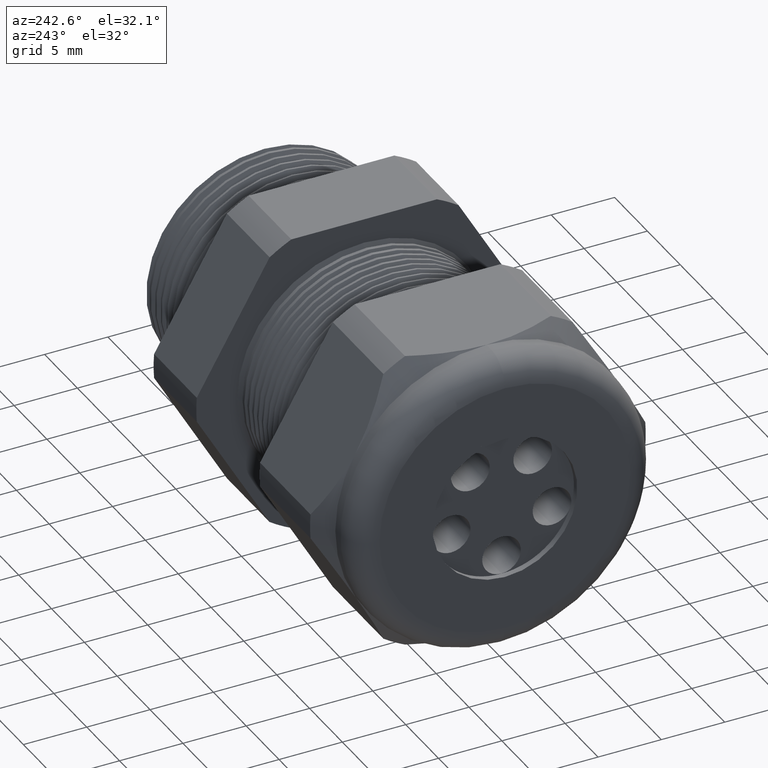
[diagram: clean part render]
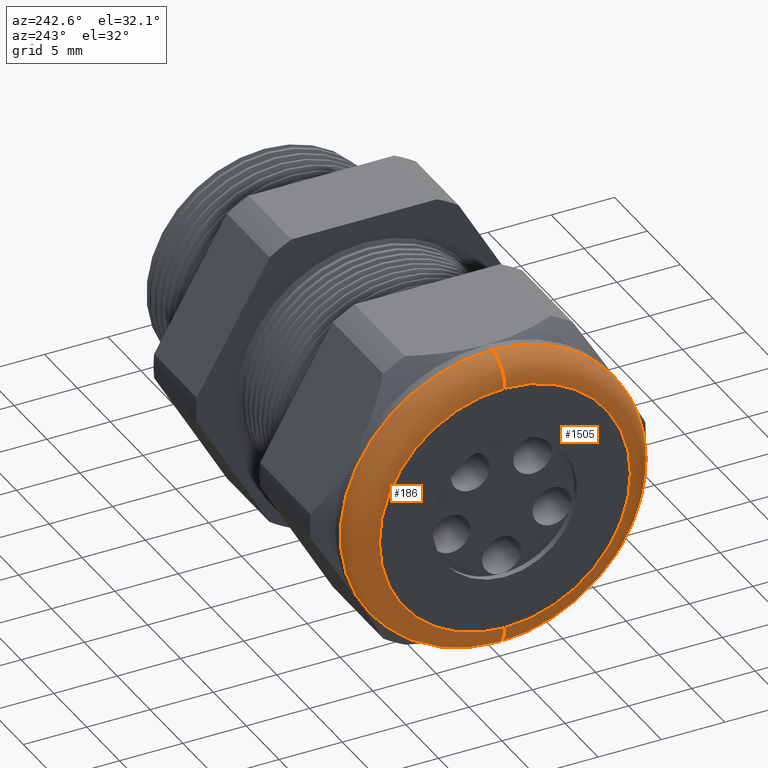
[diagram: same view with one multi-face feature highlighted, each face labeled with its STEP entity id]
A machine part, auxiliary view. The highlighted faces form ONE feature: a constant-radius fillet chain: 2 tangent blend faces with common blend radius 2.032 mm. The faces share edges in the B-rep.
Their STEP definitions:
[1] entity #186 (Torus):
#174 = EDGE_CURVE ( 'NONE', #180, #213, #2170, .T. ) ;
#176 = ORIENTED_EDGE ( 'NONE', *, *, #174, .T. ) ;
#177 = VERTEX_POINT ( 'NONE', #2226 ) ;
#180 = VERTEX_POINT ( 'NONE', #2221 ) ;
#184 = EDGE_CURVE ( 'NONE', #180, #177, #2216, .T. ) ;
#186 = ADVANCED_FACE ( 'NONE', ( #2207 ), #2206, .T. ) ;
#187 = ORIENTED_EDGE ( 'NONE', *, *, #184, .F. ) ;
#188 = EDGE_LOOP ( 'NONE', ( #187, #176, #214, #216 ) ) ;
#213 = VERTEX_POINT ( 'NONE', #2237 ) ;
#214 = ORIENTED_EDGE ( 'NONE', *, *, #219, .F. ) ;
#216 = ORIENTED_EDGE ( 'NONE', *, *, #220, .F. ) ;
#218 = VERTEX_POINT ( 'NONE', #2296 ) ;
#219 = EDGE_CURVE ( 'NONE', #218, #213, #2295, .T. ) ;
#220 = EDGE_CURVE ( 'NONE', #177, #218, #2290, .T. ) ;
#2170 = CIRCLE ( 'NONE', #2236, 0.07999999999999996000 ) ;
#2203 = DIRECTION ( 'NONE',  ( -1.000000000000000000, 0.0000000000000000000, 0.0000000000000000000 ) ) ;
#2204 = CARTESIAN_POINT ( 'NONE',  ( -1.330000000000000100, 0.0000000000000000000, 0.0000000000000000000 ) ) ;
#2205 = AXIS2_PLACEMENT_3D ( 'NONE', #2204, #2203, #2269 ) ;
#2206 = TOROIDAL_SURFACE ( 'NONE', #2205, 0.3899999999999999600, 0.08000000000000000200 ) ;
#2207 = FACE_OUTER_BOUND ( 'NONE', #188, .T. ) ;
#2212 = DIRECTION ( 'NONE',  ( 0.0000000000000000000, 0.0000000000000000000, 1.000000000000000000 ) ) ;
#2213 = DIRECTION ( 'NONE',  ( 1.000000000000000000, 0.0000000000000000000, 0.0000000000000000000 ) ) ;
#2214 = CARTESIAN_POINT ( 'NONE',  ( -1.330000000000000100, 0.0000000000000000000, 0.0000000000000000000 ) ) ;
#2215 = AXIS2_PLACEMENT_3D ( 'NONE', #2214, #2213, #2212 ) ;
#2216 = CIRCLE ( 'NONE', #2215, 0.4699999999999999200 ) ;
#2221 = CARTESIAN_POINT ( 'NONE',  ( -1.330000000000000100, 0.0000000000000000000, -0.4699999999999999200 ) ) ;
#2226 = CARTESIAN_POINT ( 'NONE',  ( -1.330000000000000100, 5.755839955992558400E-017, 0.4699999999999999200 ) ) ;
#2233 = DIRECTION ( 'NONE',  ( 0.0000000000000000000, -1.224646799147353900E-016, 1.000000000000000000 ) ) ;
#2234 = DIRECTION ( 'NONE',  ( 0.0000000000000000000, 1.000000000000000000, 1.224646799147353200E-016 ) ) ;
#2235 = CARTESIAN_POINT ( 'NONE',  ( -1.330000000000000100, 4.776122516674676800E-017, -0.3899999999999999600 ) ) ;
#2236 = AXIS2_PLACEMENT_3D ( 'NONE', #2235, #2234, #2233 ) ;
#2237 = CARTESIAN_POINT ( 'NONE',  ( -1.409999999999999900, 5.265981236333617600E-017, -0.3899999999999999600 ) ) ;
#2269 = DIRECTION ( 'NONE',  ( 0.0000000000000000000, 0.0000000000000000000, 1.000000000000000000 ) ) ;
#2286 = DIRECTION ( 'NONE',  ( 0.0000000000000000000, 0.0000000000000000000, -1.000000000000000000 ) ) ;
#2287 = DIRECTION ( 'NONE',  ( 0.0000000000000000000, -1.000000000000000000, 0.0000000000000000000 ) ) ;
#2288 = CARTESIAN_POINT ( 'NONE',  ( -1.330000000000000100, 0.0000000000000000000, 0.3899999999999999600 ) ) ;
#2289 = AXIS2_PLACEMENT_3D ( 'NONE', #2288, #2287, #2286 ) ;
#2290 = CIRCLE ( 'NONE', #2289, 0.07999999999999996000 ) ;
#2291 = DIRECTION ( 'NONE',  ( 0.0000000000000000000, 0.0000000000000000000, 1.000000000000000000 ) ) ;
#2292 = DIRECTION ( 'NONE',  ( -1.000000000000000000, 0.0000000000000000000, 0.0000000000000000000 ) ) ;
#2293 = CARTESIAN_POINT ( 'NONE',  ( -1.409999999999999900, 0.0000000000000000000, 0.0000000000000000000 ) ) ;
#2294 = AXIS2_PLACEMENT_3D ( 'NONE', #2293, #2292, #2291 ) ;
#2295 = CIRCLE ( 'NONE', #2294, 0.3899999999999999600 ) ;
#2296 = CARTESIAN_POINT ( 'NONE',  ( -1.409999999999999900, 0.0000000000000000000, 0.3899999999999999600 ) ) ;
[2] entity #1505 (Torus):
#174 = EDGE_CURVE ( 'NONE', #180, #213, #2170, .T. ) ;
#177 = VERTEX_POINT ( 'NONE', #2226 ) ;
#180 = VERTEX_POINT ( 'NONE', #2221 ) ;
#213 = VERTEX_POINT ( 'NONE', #2237 ) ;
#218 = VERTEX_POINT ( 'NONE', #2296 ) ;
#220 = EDGE_CURVE ( 'NONE', #177, #218, #2290, .T. ) ;
#1348 = EDGE_CURVE ( 'NONE', #213, #218, #4535, .T. ) ;
#1408 = EDGE_CURVE ( 'NONE', #177, #180, #4572, .T. ) ;
#1505 = ADVANCED_FACE ( 'NONE', ( #4770 ), #4769, .T. ) ;
#1506 = EDGE_LOOP ( 'NONE', ( #1563, #1564, #1565, #1566 ) ) ;
#1563 = ORIENTED_EDGE ( 'NONE', *, *, #174, .F. ) ;
#1564 = ORIENTED_EDGE ( 'NONE', *, *, #1408, .F. ) ;
#1565 = ORIENTED_EDGE ( 'NONE', *, *, #220, .T. ) ;
#1566 = ORIENTED_EDGE ( 'NONE', *, *, #1348, .F. ) ;
#2170 = CIRCLE ( 'NONE', #2236, 0.07999999999999996000 ) ;
#2221 = CARTESIAN_POINT ( 'NONE',  ( -1.330000000000000100, 0.0000000000000000000, -0.4699999999999999200 ) ) ;
#2226 = CARTESIAN_POINT ( 'NONE',  ( -1.330000000000000100, 5.755839955992558400E-017, 0.4699999999999999200 ) ) ;
#2233 = DIRECTION ( 'NONE',  ( 0.0000000000000000000, -1.224646799147353900E-016, 1.000000000000000000 ) ) ;
#2234 = DIRECTION ( 'NONE',  ( 0.0000000000000000000, 1.000000000000000000, 1.224646799147353200E-016 ) ) ;
#2235 = CARTESIAN_POINT ( 'NONE',  ( -1.330000000000000100, 4.776122516674676800E-017, -0.3899999999999999600 ) ) ;
#2236 = AXIS2_PLACEMENT_3D ( 'NONE', #2235, #2234, #2233 ) ;
#2237 = CARTESIAN_POINT ( 'NONE',  ( -1.409999999999999900, 5.265981236333617600E-017, -0.3899999999999999600 ) ) ;
#2286 = DIRECTION ( 'NONE',  ( 0.0000000000000000000, 0.0000000000000000000, -1.000000000000000000 ) ) ;
#2287 = DIRECTION ( 'NONE',  ( 0.0000000000000000000, -1.000000000000000000, 0.0000000000000000000 ) ) ;
#2288 = CARTESIAN_POINT ( 'NONE',  ( -1.330000000000000100, 0.0000000000000000000, 0.3899999999999999600 ) ) ;
#2289 = AXIS2_PLACEMENT_3D ( 'NONE', #2288, #2287, #2286 ) ;
#2290 = CIRCLE ( 'NONE', #2289, 0.07999999999999996000 ) ;
#2296 = CARTESIAN_POINT ( 'NONE',  ( -1.409999999999999900, 0.0000000000000000000, 0.3899999999999999600 ) ) ;
#4531 = DIRECTION ( 'NONE',  ( 0.0000000000000000000, 0.0000000000000000000, 1.000000000000000000 ) ) ;
#4532 = DIRECTION ( 'NONE',  ( -1.000000000000000000, 0.0000000000000000000, 0.0000000000000000000 ) ) ;
#4533 = CARTESIAN_POINT ( 'NONE',  ( -1.409999999999999900, 0.0000000000000000000, 0.0000000000000000000 ) ) ;
#4534 = AXIS2_PLACEMENT_3D ( 'NONE', #4533, #4532, #4531 ) ;
#4535 = CIRCLE ( 'NONE', #4534, 0.3899999999999999600 ) ;
#4569 = DIRECTION ( 'NONE',  ( 0.0000000000000000000, 0.0000000000000000000, 1.000000000000000000 ) ) ;
#4570 = DIRECTION ( 'NONE',  ( 1.000000000000000000, 0.0000000000000000000, 0.0000000000000000000 ) ) ;
#4571 = AXIS2_PLACEMENT_3D ( 'NONE', #4578, #4570, #4569 ) ;
#4572 = CIRCLE ( 'NONE', #4571, 0.4699999999999999200 ) ;
#4578 = CARTESIAN_POINT ( 'NONE',  ( -1.330000000000000100, 0.0000000000000000000, 0.0000000000000000000 ) ) ;
#4765 = DIRECTION ( 'NONE',  ( 0.0000000000000000000, 0.0000000000000000000, 1.000000000000000000 ) ) ;
#4766 = DIRECTION ( 'NONE',  ( -1.000000000000000000, 0.0000000000000000000, 0.0000000000000000000 ) ) ;
#4767 = CARTESIAN_POINT ( 'NONE',  ( -1.330000000000000100, 0.0000000000000000000, 0.0000000000000000000 ) ) ;
#4768 = AXIS2_PLACEMENT_3D ( 'NONE', #4767, #4766, #4765 ) ;
#4769 = TOROIDAL_SURFACE ( 'NONE', #4768, 0.3899999999999999600, 0.08000000000000000200 ) ;
#4770 = FACE_OUTER_BOUND ( 'NONE', #1506, .T. ) ;